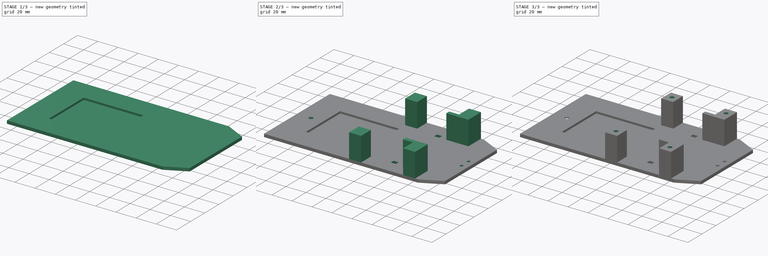
[diagram: build sequence overview — one tinted view per stage of 3, left to right]
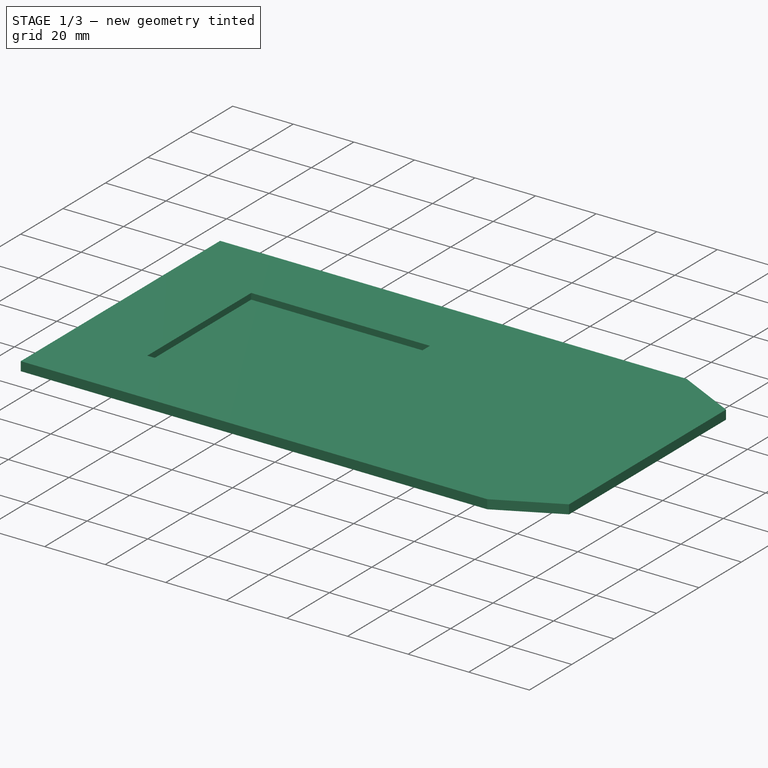
[diagram: stage 1 of 3 — iso view after this stage's code; geometry added in this stage tinted green]
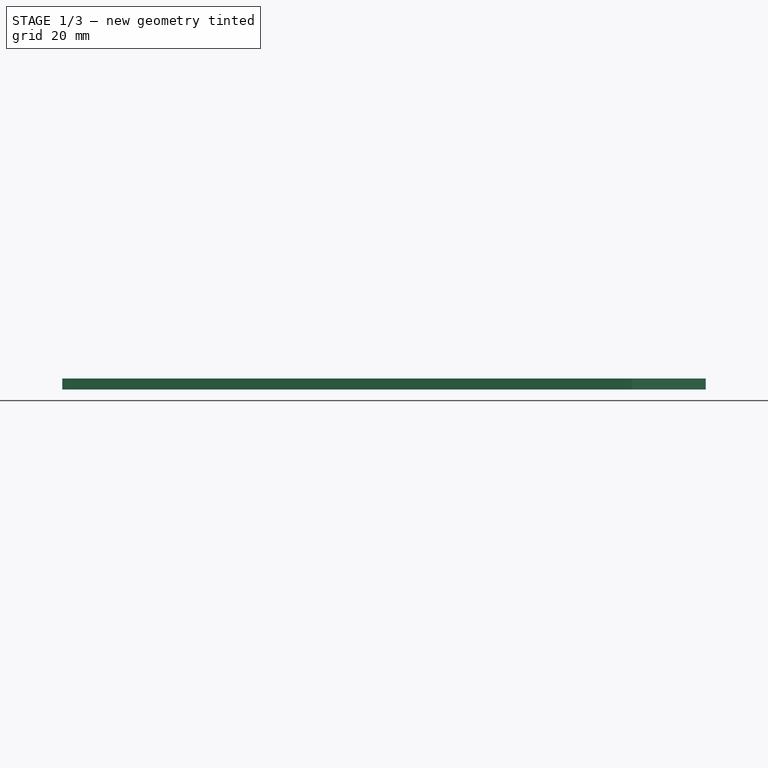
[diagram: stage 1 of 3 — front view after this stage's code; geometry added in this stage tinted green]
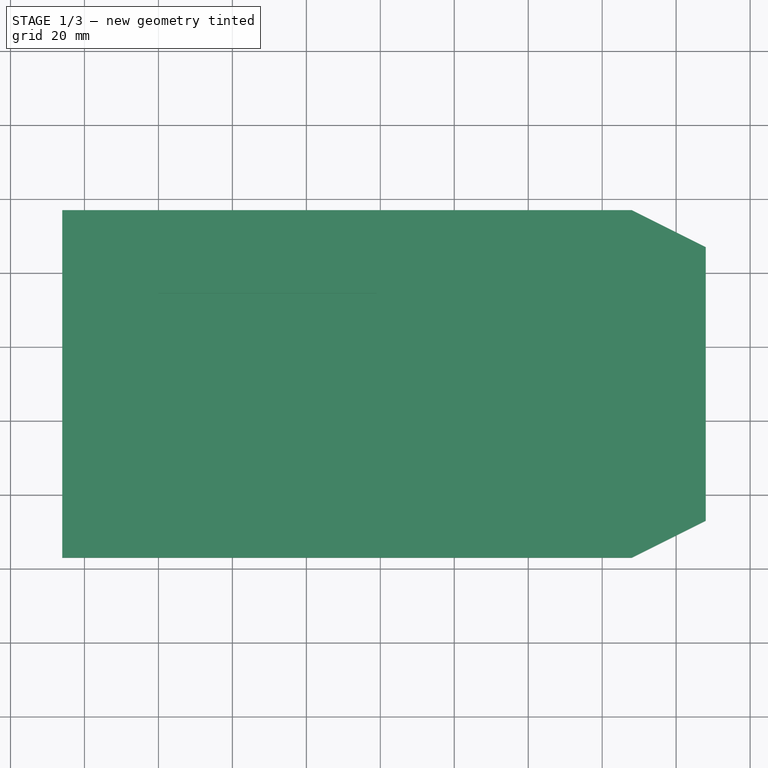
[diagram: stage 1 of 3 — top view after this stage's code; geometry added in this stage tinted green]
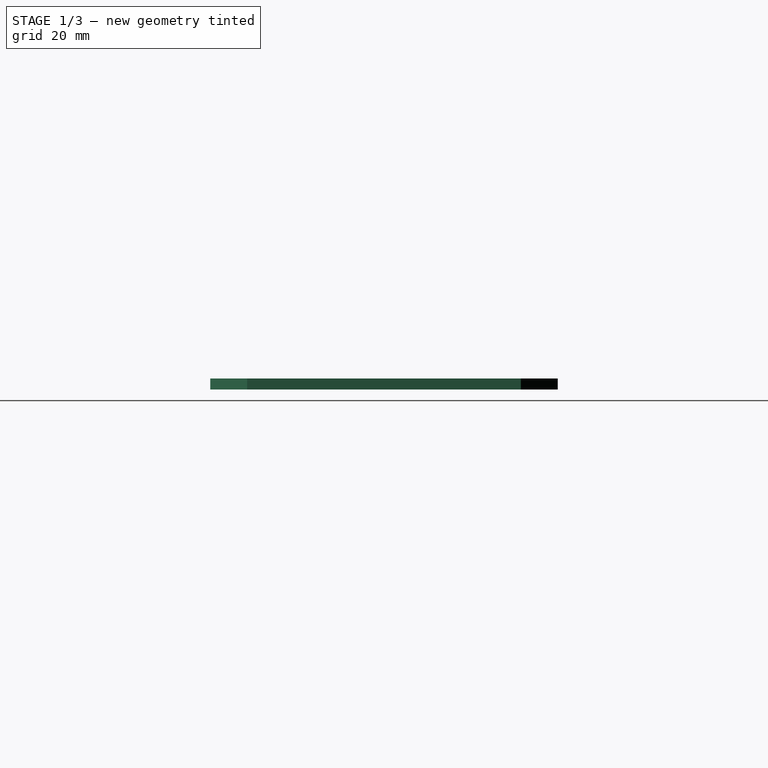
[diagram: stage 1 of 3 — right view after this stage's code; geometry added in this stage tinted green]
FCSTD DOCUMENT  (FreeCAD 0.16R6706 (Git))
Label: base-inferior
License: All rights reserved
LicenseURL: http://en.wikipedia.org/wiki/All_rights_reserved
objects: Sketcher::SketchObject×6, PartDesign::Pocket×4, PartDesign::Pad×2
note: 18 computed .brp shape members not serialized (recipe doc carries the construction recipe); baked Part::Feature solids carry a one-line shape summary decoded from their .brp

FEATURE [Sketcher::SketchObject] Sketch  label="Sketch_base"
  Placement = pos=(0,150,0) rot=(0,0,1;0rad)
  sketch-geometry (6):
    g0: LineSegment StartX=-26 StartY=47 StartZ=0 EndX=-26 EndY=-47 EndZ=0
    g1: LineSegment StartX=-26 StartY=-47 StartZ=0 EndX=128 EndY=-47 EndZ=0
    g2: LineSegment StartX=128 StartY=47 StartZ=0 EndX=-26 EndY=47 EndZ=0
    g3: LineSegment StartX=148 StartY=37 StartZ=0 EndX=148 EndY=-37 EndZ=0
    g4: LineSegment StartX=128 StartY=47 StartZ=0 EndX=148 EndY=37 EndZ=0
    g5: LineSegment StartX=148 StartY=-37 StartZ=0 EndX=128 EndY=-47 EndZ=0
  constraints (16):
    c: Coincident(g0,g1)
    c: Coincident(g2,g0)
    c: Vertical(g0)
    c: Horizontal(g1)
    c: Horizontal(g2)
    c: DistanceX(g0,g-1) = 26
    c: DistanceX(g-1,g2) = 128
    c: Symmetric(g1,g2,g-1)
    c: DistanceY(g-1,g0) = 47
    c: DistanceX(g2,g3) = 20
    c: Symmetric(g3,g3,g-1)
    c: DistanceY(g3,g2) = 10
    c: Coincident(g2,g4)
    c: Coincident(g3,g4)
    c: Coincident(g3,g5)
    c: Coincident(g1,g5)
FEATURE [PartDesign::Pad] Pad  label="Pad_base"
  Length = 3
  Length2 = 100
  Placement = pos=(0,150,0) rot=(0,0,1;0rad)
  Sketch = -> Sketch
  Type = 0
FEATURE [Sketcher::SketchObject] Sketch001  label="Sketch_portapila"
  Placement = pos=(0,150,3) rot=(0,0,1;0rad)
  Support = -> Pad [Face8]
  sketch-geometry (4):
    g0: LineSegment StartX=0 StartY=24.5 StartZ=0 EndX=59 EndY=24.5 EndZ=0
    g1: LineSegment StartX=59 StartY=24.5 StartZ=0 EndX=59 EndY=-24.5 EndZ=0
    g2: LineSegment StartX=59 StartY=-24.5 StartZ=0 EndX=0 EndY=-24.5 EndZ=0
    g3: LineSegment StartX=0 StartY=-24.5 StartZ=0 EndX=0 EndY=24.5 EndZ=0
  constraints (12):
    c: Coincident(g0,g1)
    c: Coincident(g1,g2)
    c: Coincident(g2,g3)
    c: Coincident(g3,g0)
    c: Horizontal(g0)
    c: Horizontal(g2)
    c: Vertical(g1)
    c: Vertical(g3)
    c: DistanceX(g-1,g0) = 0
    c: DistanceX(g0,g0) = 59
    c: Symmetric(g0,g2,g-1)
    c: DistanceY(g1,g0) = 49
FEATURE [PartDesign::Pocket] Pocket  label="Pocket_portapila"
  Length = 2
  Placement = pos=(0,150,0) rot=(0,0,1;0rad)
  Sketch = -> Sketch001
  Type = 0
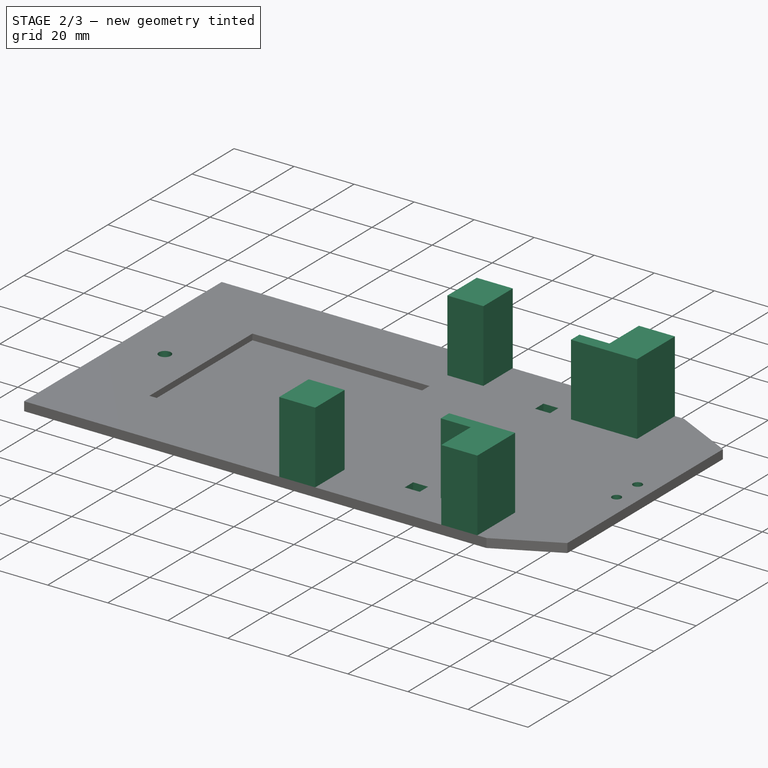
[diagram: stage 2 of 3 — iso view after this stage's code; geometry added in this stage tinted green]
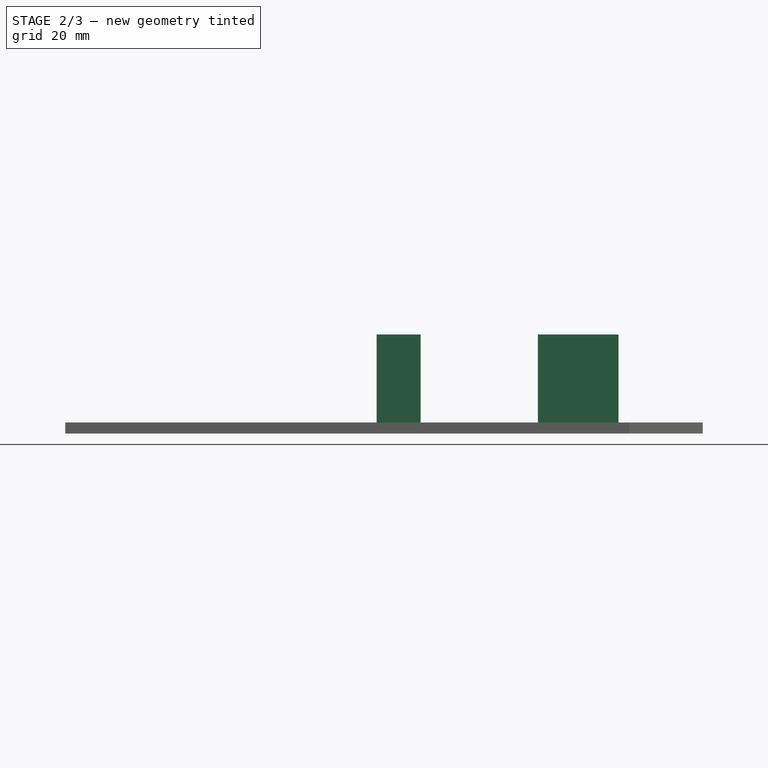
[diagram: stage 2 of 3 — front view after this stage's code; geometry added in this stage tinted green]
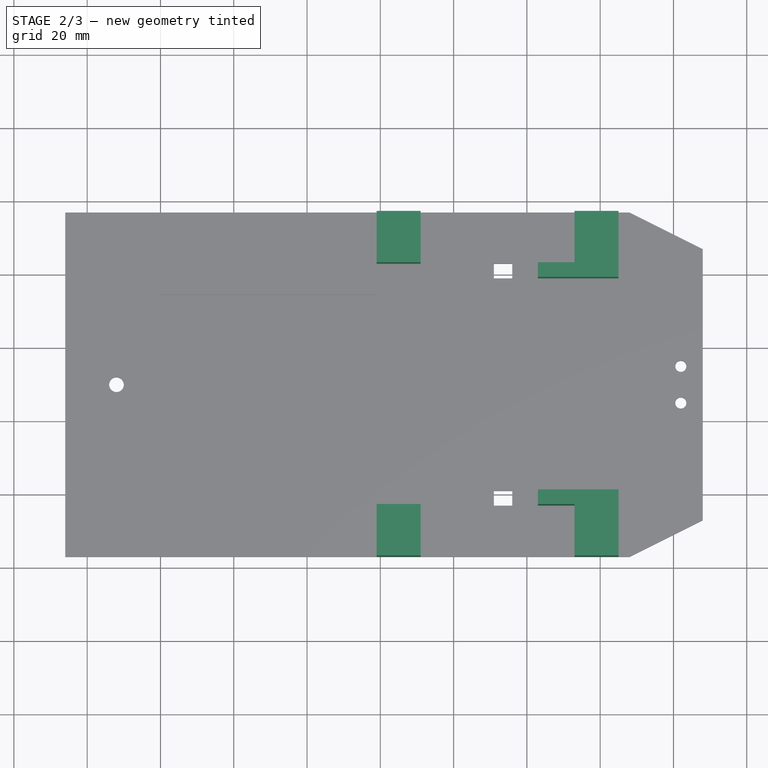
[diagram: stage 2 of 3 — top view after this stage's code; geometry added in this stage tinted green]
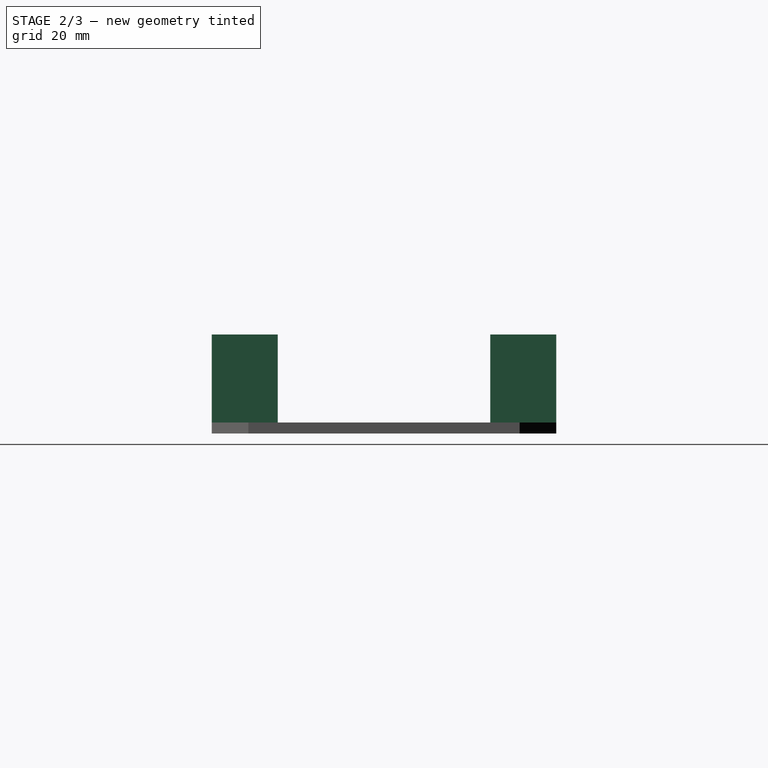
[diagram: stage 2 of 3 — right view after this stage's code; geometry added in this stage tinted green]
FEATURE [Sketcher::SketchObject] Sketch002  label="Sketch_pilastras"
  Placement = pos=(0,150,3) rot=(0,0,1;0rad)
  Support = -> Pocket [Face5]
  sketch-geometry (20):
    g0: LineSegment StartX=59 StartY=47 StartZ=0 EndX=71 EndY=47 EndZ=0
    g1: LineSegment StartX=71 StartY=47 StartZ=0 EndX=71 EndY=33 EndZ=0
    g2: LineSegment StartX=71 StartY=33 StartZ=0 EndX=59 EndY=33 EndZ=0
    g3: LineSegment StartX=59 StartY=33 StartZ=0 EndX=59 EndY=47 EndZ=0
    g4: LineSegment StartX=59 StartY=-33 StartZ=0 EndX=71 EndY=-33 EndZ=0
    g5: LineSegment StartX=71 StartY=-33 StartZ=0 EndX=71 EndY=-47 EndZ=0
    g6: LineSegment StartX=71 StartY=-47 StartZ=0 EndX=59 EndY=-47 EndZ=0
    g7: LineSegment StartX=59 StartY=-47 StartZ=0 EndX=59 EndY=-33 EndZ=0
    g8: LineSegment StartX=103 StartY=29 StartZ=0 EndX=125 EndY=29 EndZ=0
    g9: LineSegment StartX=125 StartY=29 StartZ=0 EndX=125 EndY=47 EndZ=0
    g10: LineSegment StartX=125 StartY=47 StartZ=0 EndX=113 EndY=47 EndZ=0
    g11: LineSegment StartX=113 StartY=47 StartZ=0 EndX=113 EndY=33 EndZ=0
    g12: LineSegment StartX=113 StartY=33 StartZ=0 EndX=103 EndY=33 EndZ=0
    g13: LineSegment StartX=103 StartY=33 StartZ=0 EndX=103 EndY=29 EndZ=0
    g14: LineSegment StartX=103 StartY=-29 StartZ=0 EndX=125 EndY=-29 EndZ=0
    g15: LineSegment StartX=125 StartY=-29 StartZ=0 EndX=125 EndY=-47 EndZ=0
    g16: LineSegment StartX=125 StartY=-47 StartZ=0 EndX=113 EndY=-47 EndZ=0
    g17: LineSegment StartX=113 StartY=-47 StartZ=0 EndX=113 EndY=-33 EndZ=0
    g18: LineSegment StartX=113 StartY=-33 StartZ=0 EndX=103 EndY=-33 EndZ=0
    g19: LineSegment StartX=103 StartY=-33 StartZ=0 EndX=103 EndY=-29 EndZ=0
  constraints (56):
    c: Coincident(g0,g1)
    c: Coincident(g1,g2)
    c: Coincident(g2,g3)
    c: Coincident(g3,g0)
    c: Horizontal(g0)
    c: Horizontal(g2)
    c: Vertical(g1)
    c: Vertical(g3)
    c: Coincident(g4,g5)
    c: Coincident(g5,g6)
    c: Coincident(g6,g7)
    c: Coincident(g7,g4)
    c: Horizontal(g4)
    c: Horizontal(g6)
    c: Vertical(g5)
    c: Vertical(g7)
    c: Coincident(g8,g9)
    c: Coincident(g9,g10)
    c: Coincident(g10,g11)
    c: Coincident(g11,g12)
    c: Coincident(g12,g13)
    c: Coincident(g13,g8)
    c: Coincident(g14,g15)
    c: Coincident(g15,g16)
    c: Coincident(g16,g17)
    c: Coincident(g17,g18)
    c: Coincident(g18,g19)
    c: Coincident(g19,g14)
    c: Horizontal(g8)
    c: Horizontal(g12)
    c: Horizontal(g10)
    c: Horizontal(g16)
    c: Horizontal(g18)
    c: Horizontal(g14)
    c: Vertical(g15)
    c: Vertical(g17)
    c: Vertical(g19)
    c: Vertical(g13)
    c: Vertical(g11)
    c: Vertical(g9)
    c: Symmetric(g5,g0,g-1)
    c: Symmetric(g2,g4,g-1)
    c: DistanceX(g-1,g2) = 59
    c: DistanceX(g0,g0) = 12
    c: DistanceX(g0,g10) = 42
    c: DistanceX(g12,g11) = 10
    c: DistanceX(g10,g9) = 12
    c: Symmetric(g14,g8,g-1)
    c: Symmetric(g17,g11,g-1)
    c: Symmetric(g8,g14,g-1)
    c: DistanceY(g6,g-1) = 47
    c: DistanceY(g5,g4) = 14
    c: DistanceY(g16,g-1) = 47
    c: Symmetric(g15,g9,g-1)
    c: DistanceY(g16,g17) = 14
    c: DistanceY(g8,g12) = 4
FEATURE [PartDesign::Pad] Pad001  label="Pad_pilastras"
  Length = 24
  Length2 = 100
  Placement = pos=(0,150,0) rot=(0,0,1;0rad)
  Sketch = -> Sketch002
  Type = 0
FEATURE [Sketcher::SketchObject] Sketch003  label="Sketch_taladros"
  Placement = pos=(0,150,3) rot=(0,0,1;0rad)
  Support = -> Pad001 [Face4]
  sketch-geometry (11):
    g0: Circle CenterX=-12 CenterY=0 CenterZ=0 NormalX=0 NormalY=0 NormalZ=1 Radius=2
    g1: Circle CenterX=142 CenterY=5 CenterZ=0 NormalX=0 NormalY=0 NormalZ=1 Radius=1.5
    g2: Circle CenterX=142 CenterY=-5 CenterZ=0 NormalX=0 NormalY=0 NormalZ=1 Radius=1.5
    g3: LineSegment StartX=96 StartY=33 StartZ=0 EndX=91 EndY=33 EndZ=0
    g4: LineSegment StartX=91 StartY=33 StartZ=0 EndX=91 EndY=29 EndZ=0
    g5: LineSegment StartX=91 StartY=29 StartZ=0 EndX=96 EndY=29 EndZ=0
    g6: LineSegment StartX=96 StartY=29 StartZ=0 EndX=96 EndY=33 EndZ=0
    g7: LineSegment StartX=96 StartY=-29 StartZ=0 EndX=91 EndY=-29 EndZ=0
    g8: LineSegment StartX=91 StartY=-29 StartZ=0 EndX=91 EndY=-33 EndZ=0
    g9: LineSegment StartX=91 StartY=-33 StartZ=0 EndX=96 EndY=-33 EndZ=0
    g10: LineSegment StartX=96 StartY=-33 StartZ=0 EndX=96 EndY=-29 EndZ=0
  constraints (31):
    c: Coincident(g3,g4)
    c: Coincident(g4,g5)
    c: Coincident(g5,g6)
    c: Coincident(g6,g3)
    c: Horizontal(g3)
    c: Horizontal(g5)
    c: Vertical(g4)
    c: Vertical(g6)
    c: Coincident(g7,g8)
    c: Coincident(g8,g9)
    c: Coincident(g9,g10)
    c: Coincident(g10,g7)
    c: Horizontal(g7)
    c: Horizontal(g9)
    c: Vertical(g8)
    c: Vertical(g10)
    c: Radius(g0) = 2
    c: Radius(g1) = 1.5
    c: Radius(g2) = 1.5
    c: DistanceY(g-1,g0) = 0
    c: DistanceX(g0,g-1) = 12
    c: Symmetric(g2,g1,g-1)
    c: DistanceY(g2,g1) = 10
    c: DistanceX(g-1,g2) = 142
    c: Symmetric(g5,g7,g-1)
    c: Symmetric(g9,g3,g-1)
    c: DistanceX(g-1,g5) = 96
    c: DistanceX(g4,g5) = 5
    c: DistanceY(g4,g3) = 4
    c: DistanceY(g-1,g3) = 33
    c: DistanceX(g8,g9) = 5
FEATURE [PartDesign::Pocket] Pocket001  label="Pocket_taladros"
  Length = 5
  Placement = pos=(0,150,0) rot=(0,0,1;0rad)
  Sketch = -> Sketch003
  Type = 1
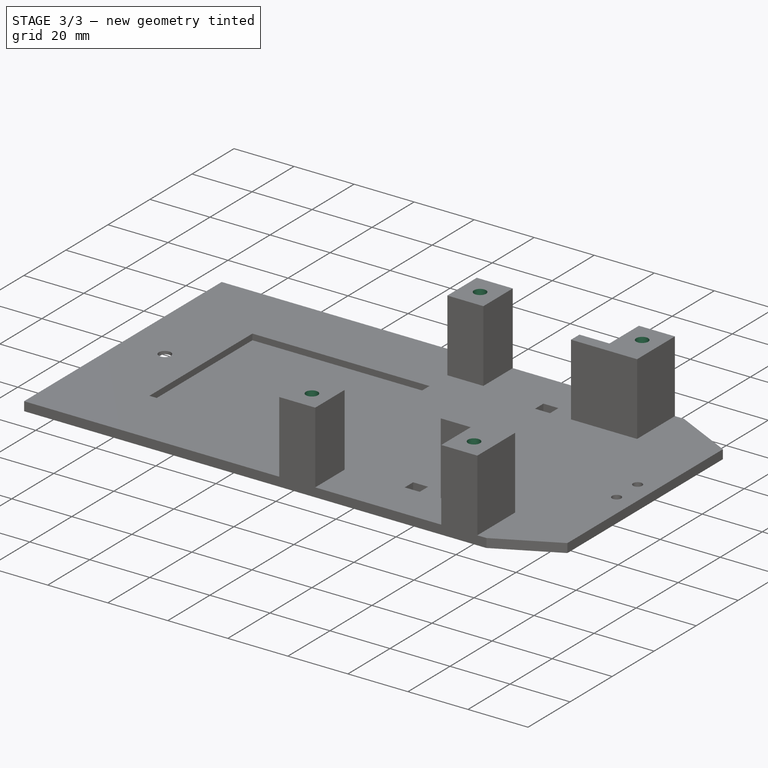
[diagram: stage 3 of 3 — iso view after this stage's code; geometry added in this stage tinted green]
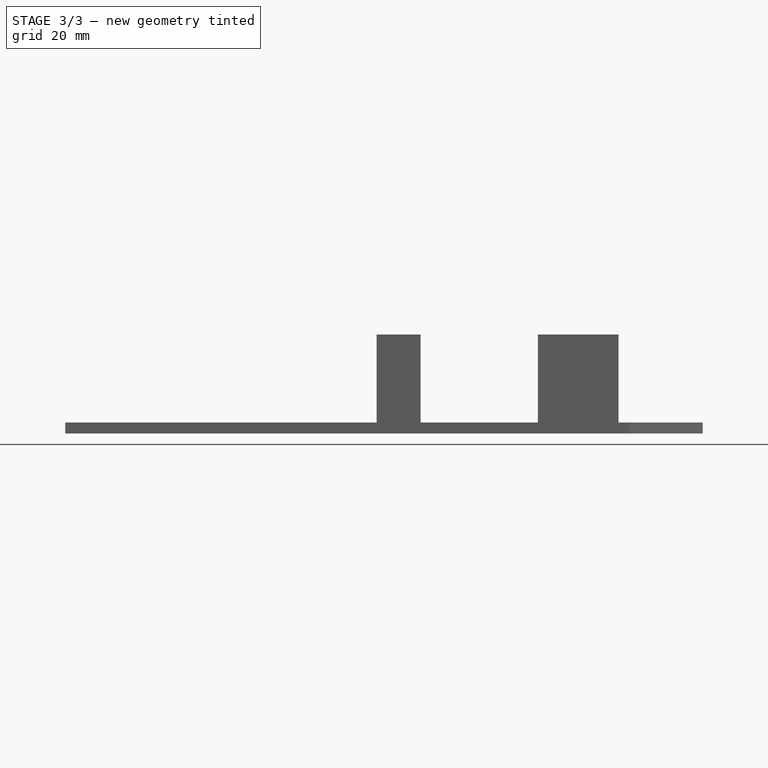
[diagram: stage 3 of 3 — front view after this stage's code; geometry added in this stage tinted green]
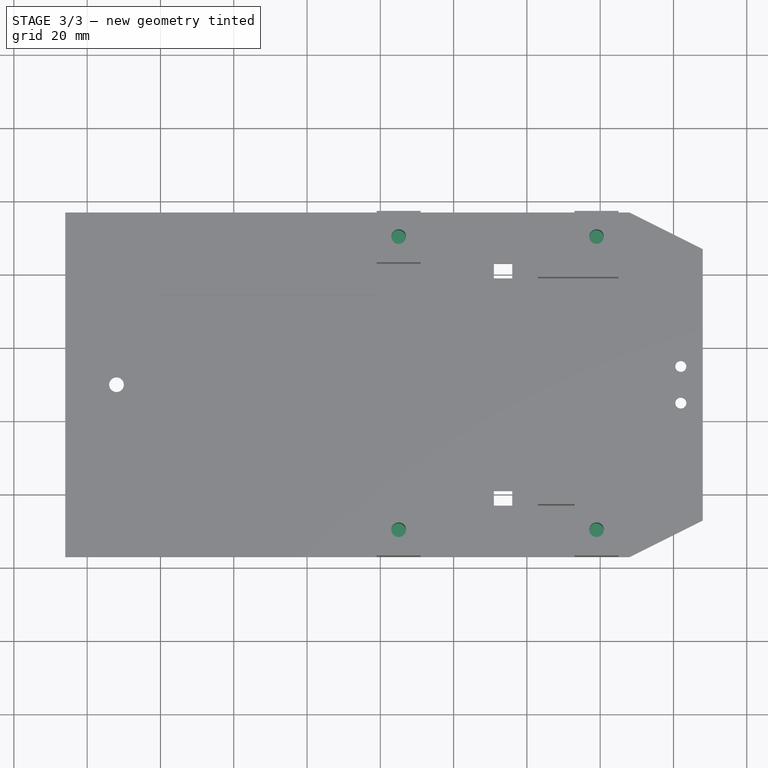
[diagram: stage 3 of 3 — top view after this stage's code; geometry added in this stage tinted green]
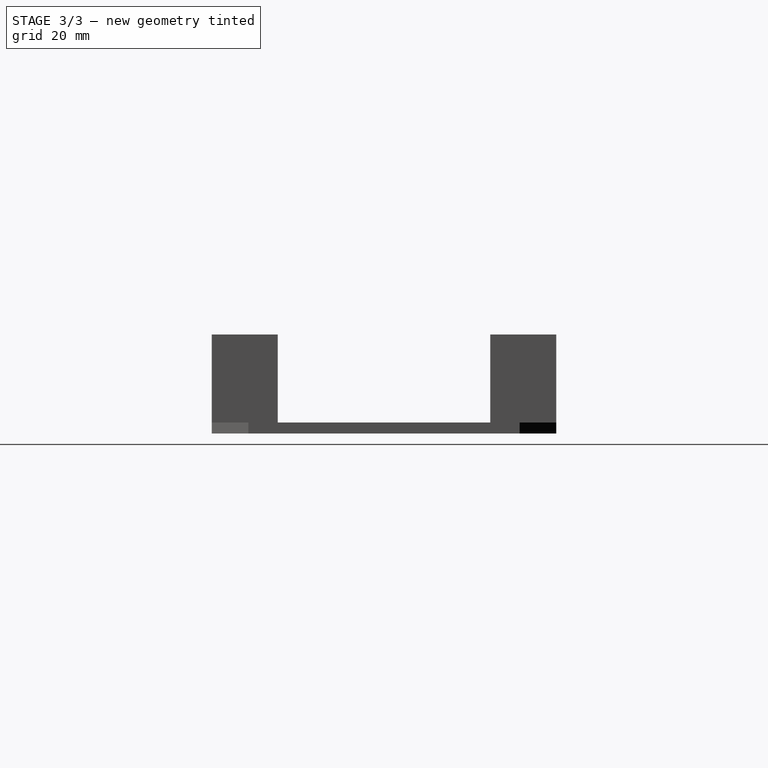
[diagram: stage 3 of 3 — right view after this stage's code; geometry added in this stage tinted green]
FEATURE [Sketcher::SketchObject] Sketch004  label="Sketch_portabola"
  Placement = pos=(0,150,0) rot=(1,0,0;3.14159rad)
  Support = -> Pocket001 [Face4]
  sketch-geometry (1):
    g0: Circle CenterX=-12 CenterY=0 CenterZ=0 NormalX=0 NormalY=0 NormalZ=1 Radius=10
  constraints (2):
    c: Radius(g0) = 10
    c: DistanceX(g0,g-1) = 12
FEATURE [PartDesign::Pocket] Pocket002  label="Pocket_portabola"
  Length = 2
  Placement = pos=(0,150,0) rot=(0,0,1;0rad)
  Sketch = -> Sketch004
  Type = 0
FEATURE [Sketcher::SketchObject] Sketch005  label="Sketch_taladros_pilastras"
  Placement = pos=(0,150,27) rot=(0,0,1;0rad)
  Support = -> Pocket002 [Face11]
  sketch-geometry (4):
    g0: Circle CenterX=119 CenterY=40 CenterZ=0 NormalX=0 NormalY=0 NormalZ=1 Radius=2
    g1: Circle CenterX=65 CenterY=40 CenterZ=0 NormalX=0 NormalY=0 NormalZ=1 Radius=2
    g2: Circle CenterX=119 CenterY=-40 CenterZ=0 NormalX=0 NormalY=0 NormalZ=1 Radius=2
    g3: Circle CenterX=65 CenterY=-40 CenterZ=0 NormalX=0 NormalY=0 NormalZ=1 Radius=2
  constraints (10):
    c: Radius(g1) = 2
    c: Equal(g1,g0)
    c: Equal(g1,g3)
    c: Equal(g1,g2)
    c: Symmetric(g2,g0,g-1)
    c: Symmetric(g3,g1,g-1)
    c: DistanceX(g-1,g1) = 65
    c: DistanceX(g1,g0) = 54
    c: DistanceY(g-1,g0) = 40
    c: DistanceY(g-1,g1) = 40
FEATURE [PartDesign::Pocket] Pocket003  label="Pocket_taladros_pilastras"
  Length = 18
  Placement = pos=(0,150,0) rot=(0,0,1;0rad)
  Sketch = -> Sketch005
  Type = 0
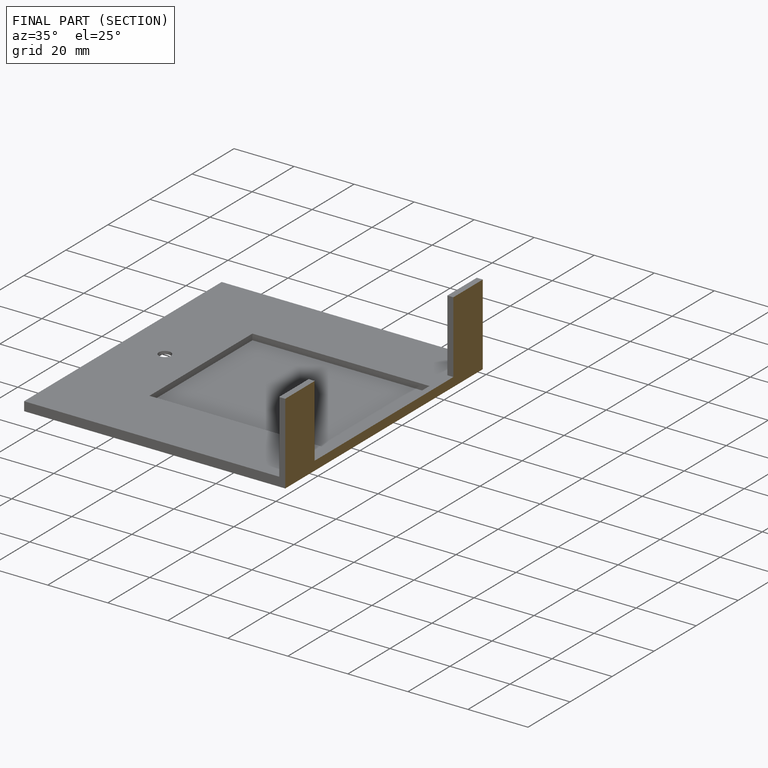
[diagram: finished part — half-section view (interior)]
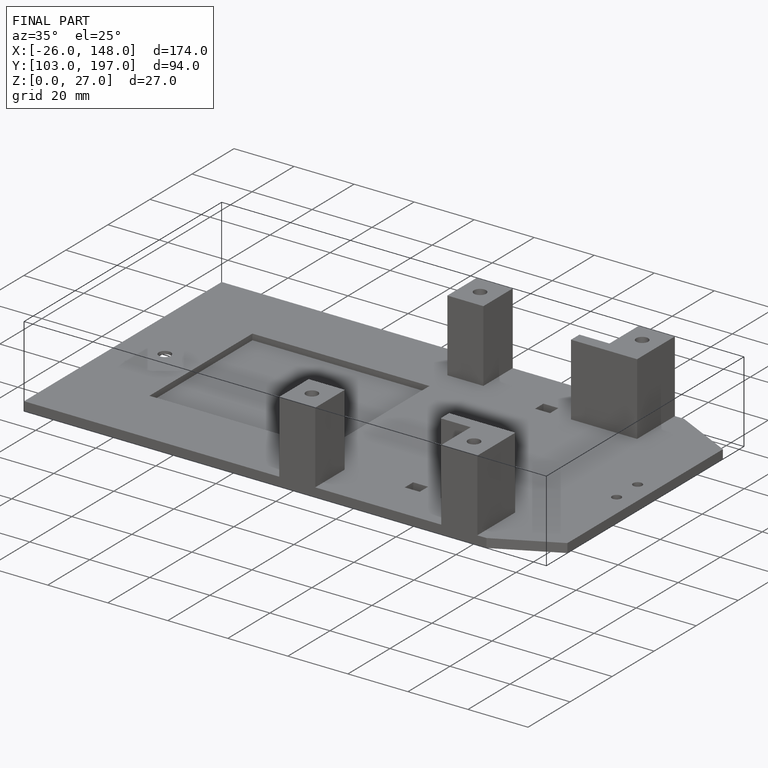
[diagram: finished part — iso view with bounding-box wireframe]
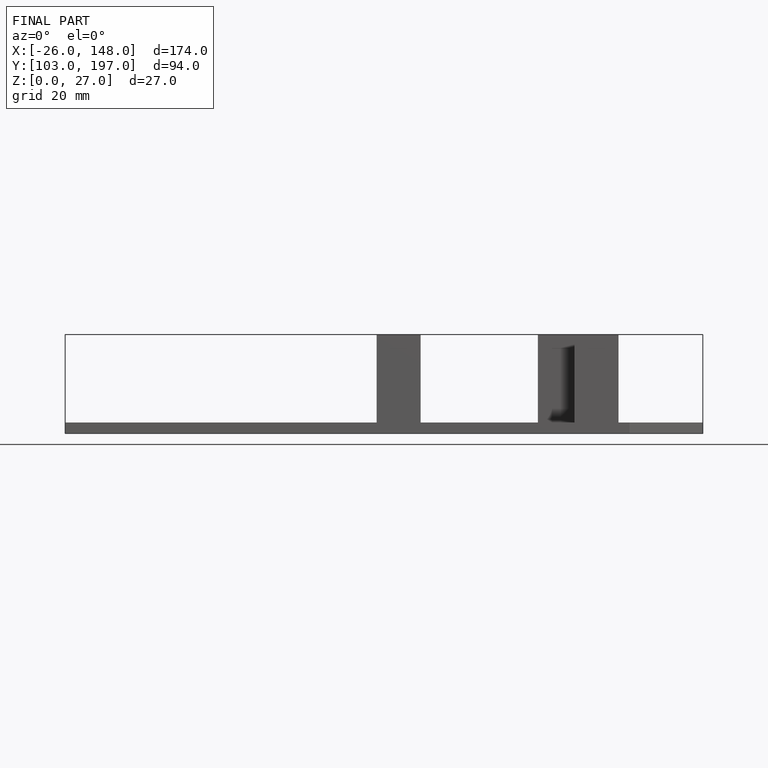
[diagram: finished part — front view with bounding-box wireframe]
